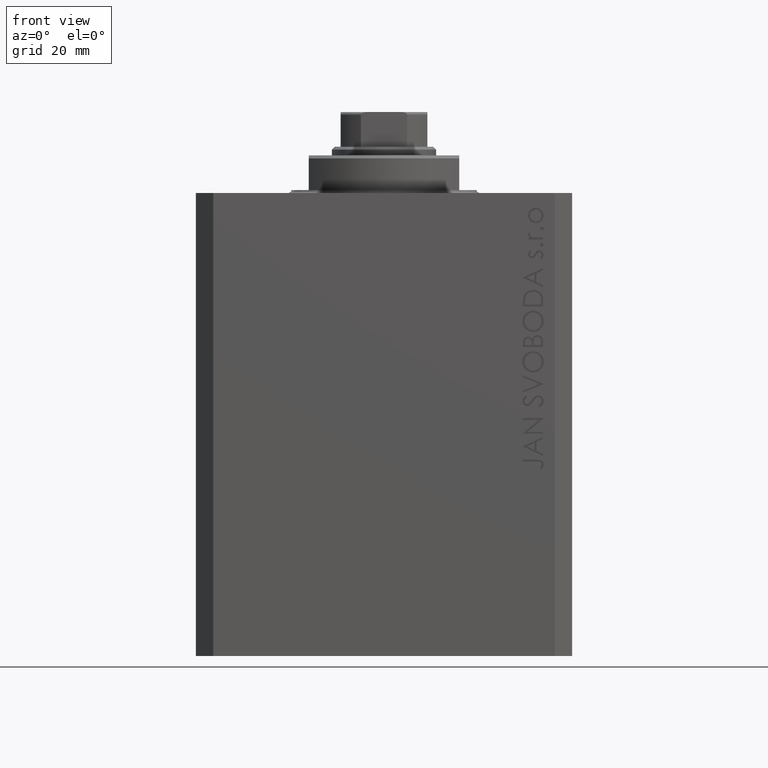
[diagram: clean part render]
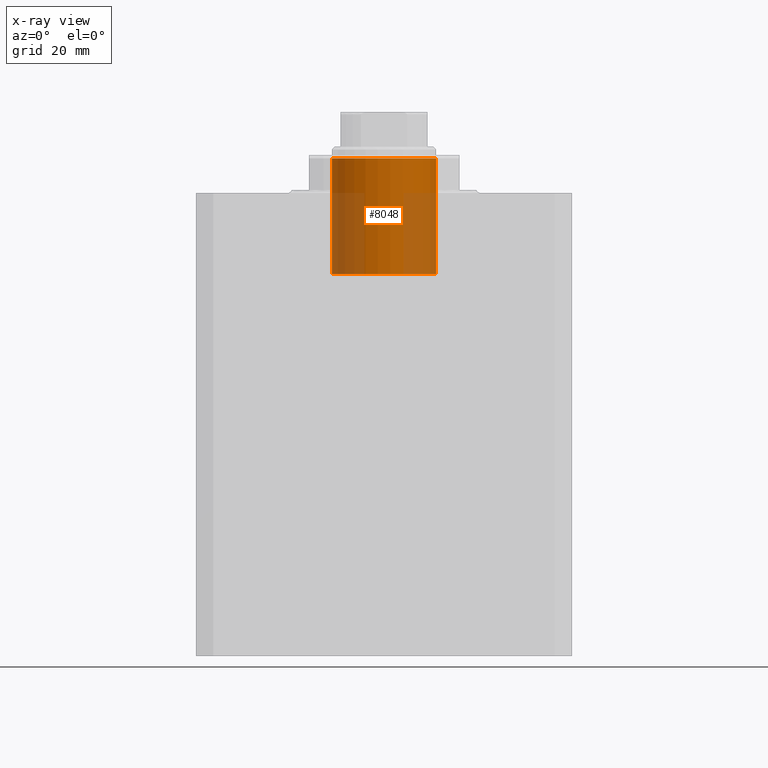
[diagram: x-ray — body ghosted, one internal face saturated and labeled with its STEP entity id]
A machine part, front view, then the same camera in x-ray: the body is ghosted and one INTERNAL B-rep face — a face not visible from any outside direction — is saturated and labeled: STEP entity #8048.
In plain terms, the highlighted cylindrical surface (partial cylindrical patch) has radius 9 mm, axis along (0, -0, 1).
Its self-contained STEP definition (entity closure, byte-faithful):
#1294 = AXIS2_PLACEMENT_3D ( 'NONE', #45014, #1797, #34935 ) ;
#1618 = EDGE_CURVE ( 'NONE', #41596, #26929, #42970, .T. ) ;
#1797 = DIRECTION ( 'NONE',  ( 0.000000000000000000, 0.000000000000000000, -1.000000000000000000 ) ) ;
#1997 = DIRECTION ( 'NONE',  ( -1.000000000000000000, 0.000000000000000000, 0.000000000000000000 ) ) ;
#6863 = EDGE_CURVE ( 'NONE', #9681, #26929, #44968, .T. ) ;
#8048 = ADVANCED_FACE ( 'NONE', ( #8725 ), #31045, .F. ) ;
#8725 = FACE_OUTER_BOUND ( 'NONE', #16939, .T. ) ;
#9681 = VERTEX_POINT ( 'NONE', #40834 ) ;
#9840 = ORIENTED_EDGE ( 'NONE', *, *, #1618, .F. ) ;
#11098 = EDGE_CURVE ( 'NONE', #31642, #9681, #46577, .T. ) ;
#12100 = CARTESIAN_POINT ( 'NONE',  ( 0.000000000000000000, 0.000000000000000000, 14.00000000000000178 ) ) ;
#13718 = CARTESIAN_POINT ( 'NONE',  ( 9.000000000000000000, 1.102182119232617714E-15, 14.00000000000000178 ) ) ;
#16939 = EDGE_LOOP ( 'NONE', ( #45438, #30818, #24807, #9840 ) ) ;
#17075 = DIRECTION ( 'NONE',  ( -0.000000000000000000, -0.000000000000000000, -1.000000000000000000 ) ) ;
#17785 = AXIS2_PLACEMENT_3D ( 'NONE', #38028, #19796, #1997 ) ;
#18370 = CARTESIAN_POINT ( 'NONE',  ( -9.000000000000000000, 0.000000000000000000, -5.999999999999987566 ) ) ;
#19796 = DIRECTION ( 'NONE',  ( 0.000000000000000000, 0.000000000000000000, -1.000000000000000000 ) ) ;
#20681 = CARTESIAN_POINT ( 'NONE',  ( -9.000000000000000000, 0.000000000000000000, 14.00000000000000178 ) ) ;
#21716 = CIRCLE ( 'NONE', #17785, 9.000000000000000000 ) ;
#22077 = DIRECTION ( 'NONE',  ( -0.000000000000000000, -0.000000000000000000, -1.000000000000000000 ) ) ;
#24807 = ORIENTED_EDGE ( 'NONE', *, *, #6863, .T. ) ;
#24996 = EDGE_CURVE ( 'NONE', #31642, #41596, #21716, .T. ) ;
#26929 = VERTEX_POINT ( 'NONE', #18370 ) ;
#30818 = ORIENTED_EDGE ( 'NONE', *, *, #11098, .T. ) ;
#31045 = CYLINDRICAL_SURFACE ( 'NONE', #32754, 9.000000000000000000 ) ;
#31642 = VERTEX_POINT ( 'NONE', #42415 ) ;
#32754 = AXIS2_PLACEMENT_3D ( 'NONE', #12100, #38261, #38020 ) ;
#34255 = VECTOR ( 'NONE', #17075, 1000.000000000000000 ) ;
#34935 = DIRECTION ( 'NONE',  ( -1.000000000000000000, 0.000000000000000000, 0.000000000000000000 ) ) ;
#38020 = DIRECTION ( 'NONE',  ( -1.000000000000000000, 0.000000000000000000, 0.000000000000000000 ) ) ;
#38028 = CARTESIAN_POINT ( 'NONE',  ( 0.000000000000000000, 0.000000000000000000, 14.00000000000000178 ) ) ;
#38261 = DIRECTION ( 'NONE',  ( -0.000000000000000000, -0.000000000000000000, -1.000000000000000000 ) ) ;
#40834 = CARTESIAN_POINT ( 'NONE',  ( 9.000000000000000000, 1.102182119232617714E-15, -5.999999999999987566 ) ) ;
#41596 = VERTEX_POINT ( 'NONE', #20681 ) ;
#42415 = CARTESIAN_POINT ( 'NONE',  ( 9.000000000000000000, 1.102182119232617714E-15, 14.00000000000000178 ) ) ;
#42970 = LINE ( 'NONE', #43198, #43270 ) ;
#43198 = CARTESIAN_POINT ( 'NONE',  ( -9.000000000000000000, 0.000000000000000000, 14.00000000000000178 ) ) ;
#43270 = VECTOR ( 'NONE', #22077, 1000.000000000000000 ) ;
#44968 = CIRCLE ( 'NONE', #1294, 9.000000000000000000 ) ;
#45014 = CARTESIAN_POINT ( 'NONE',  ( 0.000000000000000000, 0.000000000000000000, -5.999999999999987566 ) ) ;
#45438 = ORIENTED_EDGE ( 'NONE', *, *, #24996, .F. ) ;
#46577 = LINE ( 'NONE', #13718, #34255 ) ;